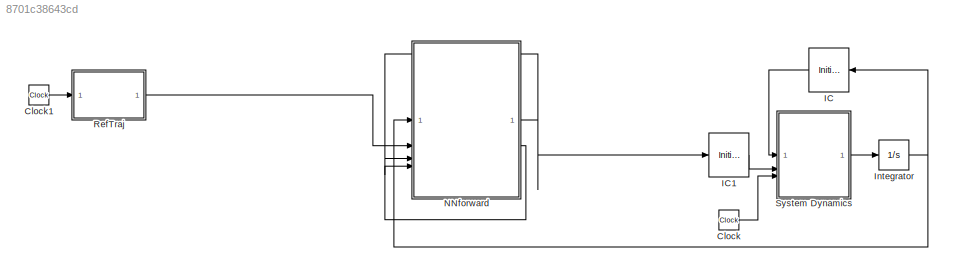
MODEL slx_8701c38643cd
KIND model
CONFIG AbsTol = auto
CONFIG EnableMultiTasking = off
CONFIG FixedStep = auto
CONFIG MaxStep = auto
CONFIG MinStep = auto
CONFIG RelTol = 1e-3
CONFIG SampleTimeConstraint = Unconstrained
CONFIG SolverName = VariableStepAuto
CONFIG StartTime = 0.0
CONFIG StopTime = paramSim.T
BLOCK [Clock] Clock
BLOCK [Clock] Clock1
BLOCK [InitialCondition] IC
  NameLocation = top
  Value = x
BLOCK [InitialCondition] IC1
  Value = u
BLOCK [Integrator] Integrator
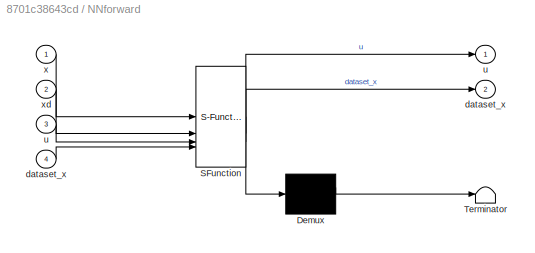
BLOCK [SubSystem] NNforward
  ErrorFcn = Stateflow.Translate.translate
  LibrarySourceBlock = simulink/User-Defined\nFunctions/MATLAB Function
  PermitHierarchicalResolution = ExplicitOnly
  SFBlockType = MATLAB Function
  TreatAsAtomicUnit = on
BLOCK [Demux] NNforward/ Demux 
  Outputs = 1
BLOCK [S-Function] NNforward/ SFunction 
  EnableBusSupport = on
  FunctionName = sf_sfun
  Parameters = paramSim
  PortCounts = [4 3]
  SFcnIsStateOwnerBlock = off
  SFunctionDeploymentMode = off
  Tag = Stateflow S-Function 3
BLOCK [Terminator] NNforward/ Terminator 
BLOCK [Outport] NNforward/dataset_x
  Port = 2
BLOCK [Inport] NNforward/dataset_x 
  Port = 4
BLOCK [Outport] NNforward/u
BLOCK [Inport] NNforward/u 
  Port = 3
BLOCK [Inport] NNforward/x
BLOCK [Inport] NNforward/xd
  Port = 2
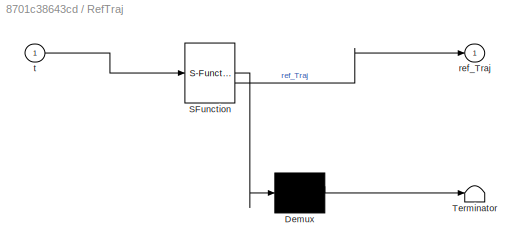
BLOCK [SubSystem] RefTraj
  ErrorFcn = Stateflow.Translate.translate
  LibrarySourceBlock = simulink/User-Defined\nFunctions/MATLAB Function
  PermitHierarchicalResolution = ExplicitOnly
  SFBlockType = MATLAB Function
  TreatAsAtomicUnit = on
BLOCK [Demux] RefTraj/ Demux 
  Outputs = 1
BLOCK [S-Function] RefTraj/ SFunction 
  EnableBusSupport = on
  FunctionName = sf_sfun
  PortCounts = [1 2]
  SFcnIsStateOwnerBlock = off
  SFunctionDeploymentMode = off
  Tag = Stateflow S-Function 1
BLOCK [Terminator] RefTraj/ Terminator 
BLOCK [Outport] RefTraj/ref_Traj
BLOCK [Inport] RefTraj/t
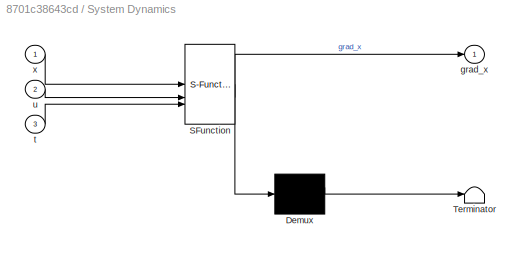
BLOCK [SubSystem] System Dynamics
  ErrorFcn = Stateflow.Translate.translate
  LibrarySourceBlock = simulink/User-Defined\nFunctions/MATLAB Function
  PermitHierarchicalResolution = ExplicitOnly
  SFBlockType = MATLAB Function
  TreatAsAtomicUnit = on
BLOCK [Demux] System Dynamics/ Demux 
  Outputs = 1
BLOCK [S-Function] System Dynamics/ SFunction 
  EnableBusSupport = on
  FunctionName = sf_sfun
  PortCounts = [3 2]
  SFcnIsStateOwnerBlock = off
  SFunctionDeploymentMode = off
  Tag = Stateflow S-Function 2
BLOCK [Terminator] System Dynamics/ Terminator 
BLOCK [Outport] System Dynamics/grad_x
BLOCK [Inport] System Dynamics/t
  Port = 3
BLOCK [Inport] System Dynamics/u
  Port = 2
BLOCK [Inport] System Dynamics/x
LINE Clock1:1 -> RefTraj:1
LINE Clock:1 -> System Dynamics:3
LINE IC1:1 -> System Dynamics:2
LINE IC:1 -> System Dynamics:1
NET Integrator:1 -> IC:1, NNforward:1
NET NNforward:1 -> IC1:1, NNforward:3
LINE NNforward:2 -> NNforward:4
LINE RefTraj:1 -> NNforward:2
LINE System Dynamics:1 -> Integrator:1
note: NET lines group one-source signal fan-out (src -> all destinations, sorted); 1:1 wires keep LINE
CHART RefTraj states=1 transitions=1
  STATE_LABEL 'eML_blk_kernel()'
  STATE_LABEL 'SCRIPT:\nfunction ref_Traj = fcn(t)\n\n\nref_Traj =[ % desired trajectory\n    sin(2*t)\n    -cos(t)\n    ];    \n\n\n'
CHART System Dynamics states=1 transitions=1
  STATE_LABEL 'eML_blk_kernel()'
  STATE_LABEL 'SCRIPT:\nfunction grad_x = fcn(x,u,t)\n\n\ngrad_x = [\n    x(1)*x(2)*tanh(x(2))+sech(x(1)) + u(1)\n    sech(x(1)+x(2))^2-sech(x(2))^2 + u(2)\n    ];\n\n% grad_x = [\n%     x(1)*x(2)*tanh(x(2))+sech(x(1)) + 2*heaviside(t-3)*(x(1)^2*x(2)+(sin(t)+10)) + u(1)\n%     sech(x(1)+x(2))^2-sech(x(2))^2 + 2*heaviside(t-3)*(x(2)^2*tanh(x(1))+(cos(1/2*t)+10)) + u(2)\n%     ];\n\n'
CHART NNforward states=1 transitions=1
  STATE_LABEL 'eML_blk_kernel()'
  STATE_LABEL 'SCRIPT:\nfunction [u, dataset_x] = NNforward(x, xd, u, dataset_x,paramSim)\n    %% INITIALIZATION\n    persistent NN\n    if isempty(NN)\n        NN.paramCtrl.rho =2;\n        NN = init_NN(paramSim);\n        \n    end\n\n    %% PREPARE\n    paramCtrl = NN.paramCtrl;\n    \n    CNNon = NN.paramCtrl.CNNon;\n    \n    error = x - xd;\n\n    nn_input = [error;x;u];\n    dataset_x(1:end-1, :) = dataset_x(2:end, :);\n   ...<+3608ch>'
CHART  states=0 transitions=0
CHART  states=0 transitions=0
CHART  states=0 transitions=0
